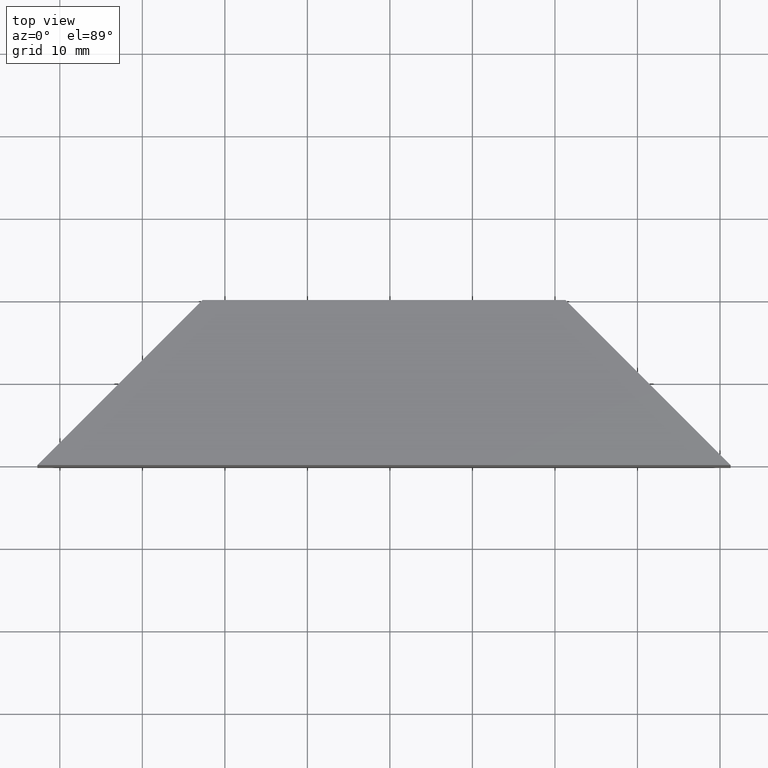
[diagram: clean part render]
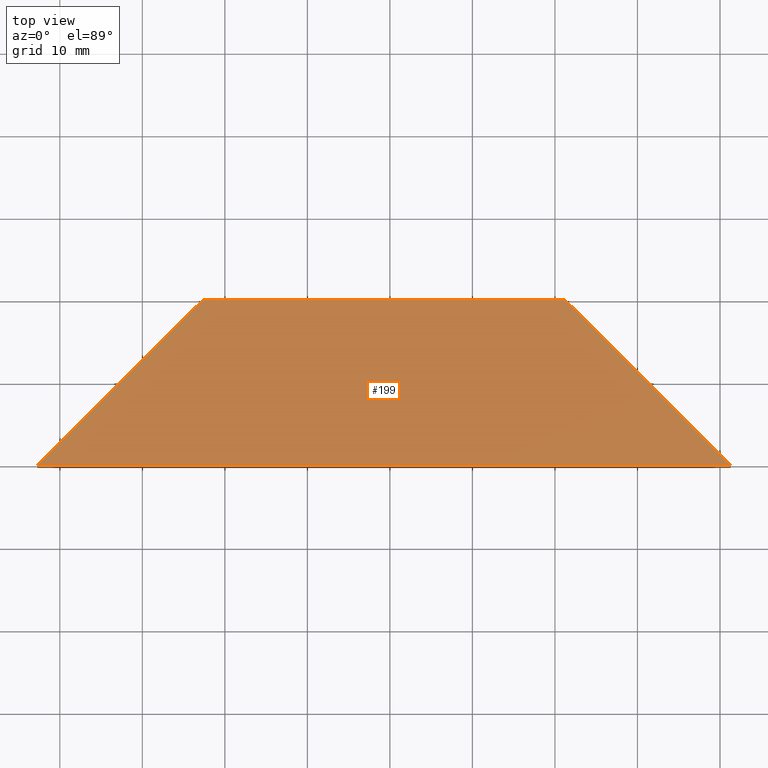
[diagram: same view with one face highlighted and labeled with its STEP entity id]
A machine part, top view. The second image highlights one B-rep face of the part: STEP entity #199.
In plain terms, the highlighted planar face has unit normal (0, -0, 1).
Its self-contained STEP definition (entity closure, byte-faithful):
#7 = CARTESIAN_POINT ( 'NONE',  ( 161.2870676035176416, 99.84420763766894424, 20.00000000000000000 ) ) ;
#10 = CARTESIAN_POINT ( 'NONE',  ( 77.28703400351744790, 99.84420763766895845, 20.00000000000000000 ) ) ;
#14 = DIRECTION ( 'NONE',  ( -1.000000000000000000, -0.000000000000000000, -0.000000000000000000 ) ) ;
#19 = DIRECTION ( 'NONE',  ( 1.000000000000000000, -1.652116935321609837E-16, 0.000000000000000000 ) ) ;
#21 = LINE ( 'NONE', #7, #137 ) ;
#22 = VERTEX_POINT ( 'NONE', #211 ) ;
#39 = ORIENTED_EDGE ( 'NONE', *, *, #71, .T. ) ;
#41 = DIRECTION ( 'NONE',  ( -0.7071067811865539010, 0.7071067811865411334, 0.000000000000000000 ) ) ;
#58 = CARTESIAN_POINT ( 'NONE',  ( 97.28703400351744790, 119.8442076376689727, 20.00000000000000000 ) ) ;
#63 = VERTEX_POINT ( 'NONE', #190 ) ;
#64 = VECTOR ( 'NONE', #14, 1000.000000000000000 ) ;
#71 = EDGE_CURVE ( 'NONE', #63, #22, #21, .T. ) ;
#74 = AXIS2_PLACEMENT_3D ( 'NONE', #226, #151, #120 ) ;
#84 = EDGE_LOOP ( 'NONE', ( #85, #154, #39, #180 ) ) ;
#85 = ORIENTED_EDGE ( 'NONE', *, *, #108, .T. ) ;
#94 = EDGE_CURVE ( 'NONE', #22, #161, #102, .T. ) ;
#102 = LINE ( 'NONE', #171, #64 ) ;
#108 = EDGE_CURVE ( 'NONE', #161, #165, #174, .T. ) ;
#120 = DIRECTION ( 'NONE',  ( 1.000000000000000000, 0.000000000000000000, -0.000000000000000000 ) ) ;
#128 = LINE ( 'NONE', #189, #212 ) ;
#133 = DIRECTION ( 'NONE',  ( -0.7071067811865474617, -0.7071067811865474617, -0.000000000000000000 ) ) ;
#137 = VECTOR ( 'NONE', #41, 1000.000000000000000 ) ;
#151 = DIRECTION ( 'NONE',  ( 0.000000000000000000, -0.000000000000000000, 1.000000000000000000 ) ) ;
#154 = ORIENTED_EDGE ( 'NONE', *, *, #224, .T. ) ;
#156 = CARTESIAN_POINT ( 'NONE',  ( 77.28703400351744790, 99.84420763766895845, 20.00000000000000000 ) ) ;
#161 = VERTEX_POINT ( 'NONE', #58 ) ;
#163 = VECTOR ( 'NONE', #133, 1000.000000000000114 ) ;
#165 = VERTEX_POINT ( 'NONE', #10 ) ;
#167 = FACE_OUTER_BOUND ( 'NONE', #84, .T. ) ;
#171 = CARTESIAN_POINT ( 'NONE',  ( 97.28703400351744790, 119.8442076376689727, 20.00000000000000000 ) ) ;
#174 = LINE ( 'NONE', #156, #163 ) ;
#180 = ORIENTED_EDGE ( 'NONE', *, *, #94, .T. ) ;
#187 = PLANE ( 'NONE',  #74 ) ;
#189 = CARTESIAN_POINT ( 'NONE',  ( 77.28703400351744790, 99.84420763766895845, 20.00000000000000000 ) ) ;
#190 = CARTESIAN_POINT ( 'NONE',  ( 161.2870676035176416, 99.84420763766894424, 20.00000000000000000 ) ) ;
#199 = ADVANCED_FACE ( 'NONE', ( #167 ), #187, .T. ) ;
#211 = CARTESIAN_POINT ( 'NONE',  ( 141.2870676035172437, 119.8442076376689727, 20.00000000000000000 ) ) ;
#212 = VECTOR ( 'NONE', #19, 1000.000000000000000 ) ;
#224 = EDGE_CURVE ( 'NONE', #165, #63, #128, .T. ) ;
#226 = CARTESIAN_POINT ( 'NONE',  ( 0.000000000000000000, 0.000000000000000000, 20.00000000000000000 ) ) ;